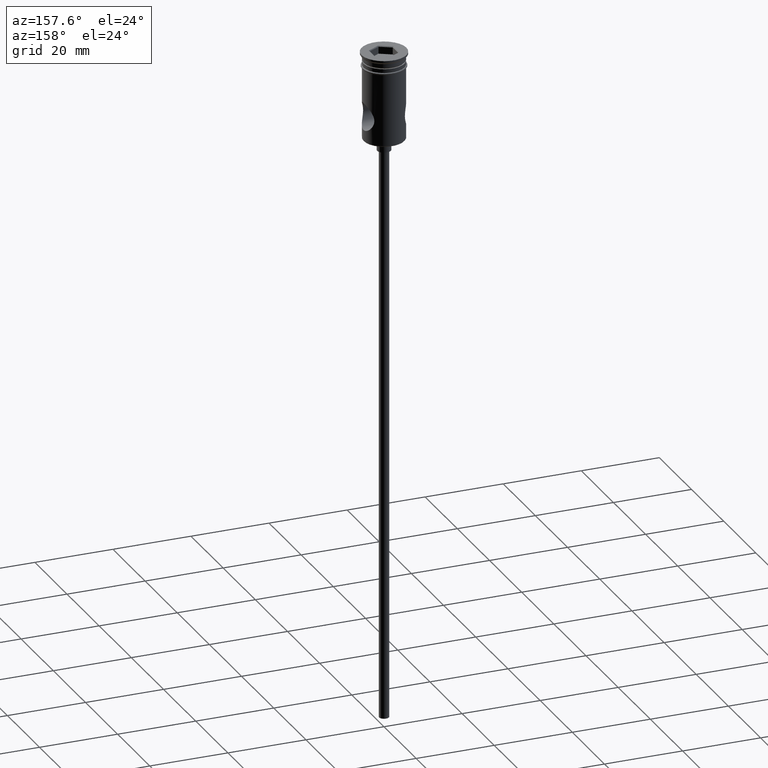
[diagram: clean part render]
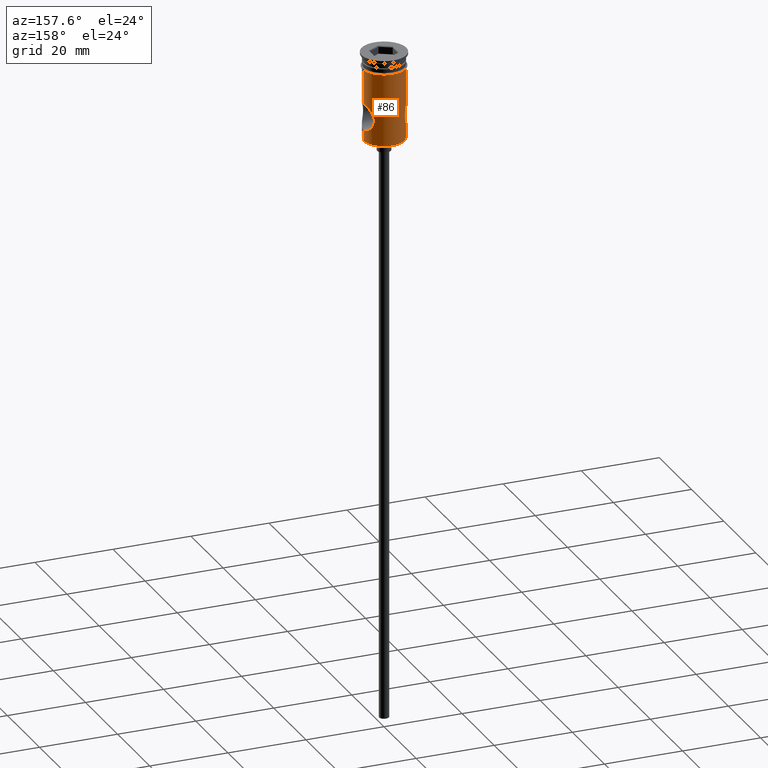
[diagram: same view with one face highlighted and labeled with its STEP entity id]
A machine part, auxiliary view. The second image highlights one B-rep face of the part: STEP entity #86.
In plain terms, the highlighted cylindrical surface (edge-blend (fillet) strip) has radius 5.25 mm, axis along (-0, -0, 1).
Its self-contained STEP definition (entity closure, byte-faithful):
#35 = EDGE_CURVE ( 'NONE', #130, #1314, #1269, .T. ) ;
#45 = CARTESIAN_POINT ( 'NONE',  ( 5.010722034647405287, 1.582225660229891417, -12.86955452061876493 ) ) ;
#49 = CARTESIAN_POINT ( 'NONE',  ( -4.791591092289863241, 2.154829214170284502, -13.23284061381127330 ) ) ;
#51 = EDGE_CURVE ( 'NONE', #888, #536, #269, .T. ) ;
#64 = ORIENTED_EDGE ( 'NONE', *, *, #35, .T. ) ;
#84 = CARTESIAN_POINT ( 'NONE',  ( -5.249999999999997335, 0.000000000000000000, -19.50000000000000000 ) ) ;
#86 = ADVANCED_FACE ( 'NONE', ( #385 ), #172, .T. ) ;
#92 = ORIENTED_EDGE ( 'NONE', *, *, #607, .F. ) ;
#93 = CARTESIAN_POINT ( 'NONE',  ( 4.941524827079387450, 1.784271681777895413, -12.98066119771261739 ) ) ;
#127 = CARTESIAN_POINT ( 'NONE',  ( -5.249999999999997335, 0.2356573567156205196, -12.49999999999999822 ) ) ;
#130 = VERTEX_POINT ( 'NONE', #505 ) ;
#134 = CARTESIAN_POINT ( 'NONE',  ( -5.249999999999998224, 6.429395695523602181E-16, -3.799999999999998934 ) ) ;
#135 = CARTESIAN_POINT ( 'NONE',  ( 5.249999999999997335, 0.2394817979535390218, -19.50000000000000355 ) ) ;
#151 = CARTESIAN_POINT ( 'NONE',  ( 5.249999999999997335, 0.000000000000000000, 0.000000000000000000 ) ) ;
#153 = CARTESIAN_POINT ( 'NONE',  ( 5.249999999999998224, 0.2359691128690733219, -12.50000000000000000 ) ) ;
#155 = VERTEX_POINT ( 'NONE', #1405 ) ;
#156 = CARTESIAN_POINT ( 'NONE',  ( 0.000000000000000000, 0.000000000000000000, -22.29999999999999716 ) ) ;
#162 = VERTEX_POINT ( 'NONE', #630 ) ;
#172 = CYLINDRICAL_SURFACE ( 'NONE', #1028, 5.249999999999997335 ) ;
#174 = CARTESIAN_POINT ( 'NONE',  ( -3.935709764125990606, 3.475135228226968298, -16.47752279465179726 ) ) ;
#183 = CARTESIAN_POINT ( 'NONE',  ( 5.249999999999997335, 9.037561610381727207E-20, -12.50000000000000000 ) ) ;
#198 = CARTESIAN_POINT ( 'NONE',  ( 5.171017401262783864, 0.9368000147816671896, -12.61943741575975864 ) ) ;
#213 = CARTESIAN_POINT ( 'NONE',  ( -5.249999999999997335, 0.000000000000000000, -19.50000000000000000 ) ) ;
#259 = VERTEX_POINT ( 'NONE', #1095 ) ;
#267 = CIRCLE ( 'NONE', #849, 5.249999999999999112 ) ;
#269 = LINE ( 'NONE', #1368, #982 ) ;
#273 = CARTESIAN_POINT ( 'NONE',  ( -4.941870577857391034, 1.783409467750111332, -12.98008101414071547 ) ) ;
#275 = CARTESIAN_POINT ( 'NONE',  ( 5.125401452483045794, 1.158029921580446375, -12.68909474010616023 ) ) ;
#280 = CARTESIAN_POINT ( 'NONE',  ( -4.541142868155102263, 2.640433033719366218, -13.69193262782664355 ) ) ;
#290 = CARTESIAN_POINT ( 'NONE',  ( -5.171446349193717928, 0.9340234967078269168, -19.38121539794984116 ) ) ;
#310 = CARTESIAN_POINT ( 'NONE',  ( 3.956270316689134425, 3.451288398606817687, -16.59344471299515433 ) ) ;
#354 = CARTESIAN_POINT ( 'NONE',  ( 5.125279937689080967, 1.158394803269064299, -19.31071042783137059 ) ) ;
#361 = LINE ( 'NONE', #367, #1320 ) ;
#367 = CARTESIAN_POINT ( 'NONE',  ( 5.249999999999997335, 0.000000000000000000, 0.000000000000000000 ) ) ;
#373 = CARTESIAN_POINT ( 'NONE',  ( -5.171157607198458628, 0.9357787620484806501, -12.61922458594744434 ) ) ;
#375 = CARTESIAN_POINT ( 'NONE',  ( 4.791879949463428545, 2.154107611278242462, -13.23235612182024212 ) ) ;
#385 = FACE_OUTER_BOUND ( 'NONE', #1163, .T. ) ;
#408 = EDGE_CURVE ( 'NONE', #259, #535, #820, .T. ) ;
#412 = CARTESIAN_POINT ( 'NONE',  ( -4.211358233975348142, 3.136775979440171724, -14.43100953861071289 ) ) ;
#418 = CARTESIAN_POINT ( 'NONE',  ( 4.291847880858497000, 3.027309060174748101, -17.77045454751424103 ) ) ;
#457 = B_SPLINE_CURVE_WITH_KNOTS ( 'NONE', 3,
 ( #932, #127, #1378, #373, #1048, #1277, #273, #49, #1408, #280, #515, #1190, #412, #1174, #1063, #1055, #531, #971, #174, #956, #1197, #1414, #1394, #623, #836, #721, #1283, #1165, #290, #524, #861, #84 ),
 .UNSPECIFIED., .F., .F.,
 ( 4, 2, 2, 2, 2, 2, 2, 2, 2, 2, 2, 2, 2, 2, 2, 4 ),
 ( 0.01131190453721613379, 0.01201796450896624492, 0.01272402448071635606, 0.01343008445246646719, 0.01413614442421657832, 0.01484220439596668772, 0.01554826436771679886, 0.01625432433946690999, 0.01696038431121701939, 0.01766644428296713226, 0.01837250425471724166, 0.01978462419821747087, 0.02049068416996758721, 0.02119674414171770355, 0.02190280411346781642, 0.02260886408521793275 ),
 .UNSPECIFIED. ) ;
#473 = VECTOR ( 'NONE', #821, 1000.000000000000000 ) ;
#491 = CARTESIAN_POINT ( 'NONE',  ( 0.000000000000000000, 0.000000000000000000, 0.000000000000000000 ) ) ;
#505 = CARTESIAN_POINT ( 'NONE',  ( -5.249999999999997335, 6.428491939192731130E-16, -12.50000000000000000 ) ) ;
#515 = CARTESIAN_POINT ( 'NONE',  ( -4.455882725706747038, 2.780268144892075632, -13.86229586798408597 ) ) ;
#524 = CARTESIAN_POINT ( 'NONE',  ( -5.233651169580556761, 0.4745025501927483402, -19.47560998813100497 ) ) ;
#525 = ORIENTED_EDGE ( 'NONE', *, *, #408, .F. ) ;
#526 = CARTESIAN_POINT ( 'NONE',  ( 4.076450620869312758, 3.310222646711700190, -17.15912893648900805 ) ) ;
#531 = CARTESIAN_POINT ( 'NONE',  ( -3.912973667625769814, 3.500162442579392241, -15.76330045747091546 ) ) ;
#535 = VERTEX_POINT ( 'NONE', #1129 ) ;
#536 = VERTEX_POINT ( 'NONE', #213 ) ;
#573 = ORIENTED_EDGE ( 'NONE', *, *, #51, .T. ) ;
#584 = CARTESIAN_POINT ( 'NONE',  ( 5.171738567981856605, 0.9322884155218371660, -19.38166086832590906 ) ) ;
#607 = EDGE_CURVE ( 'NONE', #155, #1314, #267, .T. ) ;
#610 = CARTESIAN_POINT ( 'NONE',  ( 4.015700048634967878, 3.382383198169304883, -15.06996144822462647 ) ) ;
#623 = CARTESIAN_POINT ( 'NONE',  ( -4.710874926819403896, 2.324119615847294540, -18.62629487387890137 ) ) ;
#630 = CARTESIAN_POINT ( 'NONE',  ( 5.249999999999997335, 0.000000000000000000, -22.29999999999999716 ) ) ;
#639 = DIRECTION ( 'NONE',  ( 1.000000000000000000, 0.000000000000000000, 0.000000000000000000 ) ) ;
#642 = ORIENTED_EDGE ( 'NONE', *, *, #1428, .F. ) ;
#645 = CARTESIAN_POINT ( 'NONE',  ( 5.233763254461210046, 0.4740647931550008298, -12.52421804113795645 ) ) ;
#649 = CARTESIAN_POINT ( 'NONE',  ( 3.934500147216331456, 3.476502778859750453, -15.53158113228982451 ) ) ;
#662 = CARTESIAN_POINT ( 'NONE',  ( 0.000000000000000000, 0.000000000000000000, -3.799999999999998934 ) ) ;
#692 = DIRECTION ( 'NONE',  ( -0.000000000000000000, -0.000000000000000000, 1.000000000000000000 ) ) ;
#702 = CARTESIAN_POINT ( 'NONE',  ( -5.249999999999997335, 6.429395695523601195E-16, -22.29999999999999716 ) ) ;
#717 = CARTESIAN_POINT ( 'NONE',  ( 4.017161582871402459, 3.380647649991993298, -16.93567858667559634 ) ) ;
#721 = CARTESIAN_POINT ( 'NONE',  ( -4.943496079229931617, 1.778885936374027477, -19.02256480771651326 ) ) ;
#748 = CARTESIAN_POINT ( 'NONE',  ( 4.542248346412462112, 2.638603940227051137, -13.68972905434603149 ) ) ;
#763 = CARTESIAN_POINT ( 'NONE',  ( 4.542868706571997706, 2.637461925376886285, -18.31144200051445736 ) ) ;
#770 = EDGE_CURVE ( 'NONE', #162, #888, #1078, .T. ) ;
#780 = AXIS2_PLACEMENT_3D ( 'NONE', #156, #1258, #1047 ) ;
#800 = DIRECTION ( 'NONE',  ( -0.000000000000000000, -0.000000000000000000, 1.000000000000000000 ) ) ;
#820 = B_SPLINE_CURVE_WITH_KNOTS ( 'NONE', 3,
 ( #1357, #135, #923, #584, #354, #1026, #1415, #1084, #1305, #763, #1207, #418, #1410, #526, #717, #310, #1379, #973, #934, #869, #649, #610, #1043, #830, #1092, #879, #748, #966, #375, #93, #45, #275, #198, #645, #153, #183 ),
 .UNSPECIFIED., .F., .F.,
 ( 4, 2, 2, 2, 2, 2, 2, 2, 2, 2, 2, 2, 2, 2, 2, 2, 2, 4 ),
 ( 0.000000000000000000, 0.0007069940335760138911, 0.001413988067152027782, 0.002120982100728041782, 0.002827976134304055564, 0.003534970167880069347, 0.004241964201456083564, 0.004948958235032096913, 0.005302455251820098817, 0.005655952268608101588, 0.006362946302184104529, 0.007069940335760109204, 0.007776934369336112145, 0.008483928402912116820, 0.009190922436488120628, 0.009897916470064124436, 0.01060491050364012824, 0.01131190453721613205 ),
 .UNSPECIFIED. ) ;
#821 = DIRECTION ( 'NONE',  ( -0.000000000000000000, -0.000000000000000000, 1.000000000000000000 ) ) ;
#830 = CARTESIAN_POINT ( 'NONE',  ( 4.211626988821404183, 3.136439829262892776, -14.43012365747861914 ) ) ;
#836 = CARTESIAN_POINT ( 'NONE',  ( -4.793649463825862433, 2.150235679629799446, -18.77070743917913731 ) ) ;
#839 = DIRECTION ( 'NONE',  ( -0.000000000000000000, -0.000000000000000000, 1.000000000000000000 ) ) ;
#849 = AXIS2_PLACEMENT_3D ( 'NONE', #662, #1107, #1119 ) ;
#861 = CARTESIAN_POINT ( 'NONE',  ( -5.249999999999997335, 0.2391654009334201192, -19.50000000000000355 ) ) ;
#866 = ORIENTED_EDGE ( 'NONE', *, *, #770, .T. ) ;
#869 = CARTESIAN_POINT ( 'NONE',  ( 3.912935558424084803, 3.500205050033672105, -15.76559328519909897 ) ) ;
#879 = CARTESIAN_POINT ( 'NONE',  ( 4.455965565348065205, 2.780112593366052653, -13.86216665491766165 ) ) ;
#888 = VERTEX_POINT ( 'NONE', #702 ) ;
#903 = CARTESIAN_POINT ( 'NONE',  ( -5.249999999999997335, 6.429395695523601195E-16, 0.000000000000000000 ) ) ;
#923 = CARTESIAN_POINT ( 'NONE',  ( 5.233705508463598832, 0.4736751586742009579, -19.47569040078916203 ) ) ;
#926 = DIRECTION ( 'NONE',  ( -0.000000000000000000, -0.000000000000000000, 1.000000000000000000 ) ) ;
#932 = CARTESIAN_POINT ( 'NONE',  ( -5.249999999999997335, 6.428491939192731130E-16, -12.50000000000000000 ) ) ;
#934 = CARTESIAN_POINT ( 'NONE',  ( 3.913212435243750065, 3.499895492128140884, -16.12176624835054284 ) ) ;
#956 = CARTESIAN_POINT ( 'NONE',  ( -4.017013811892041986, 3.380824786493573431, -16.93520940805085573 ) ) ;
#966 = CARTESIAN_POINT ( 'NONE',  ( 4.710700327440309643, 2.324554412983745877, -13.37397079666039978 ) ) ;
#971 = CARTESIAN_POINT ( 'NONE',  ( -3.913265713256698586, 3.499835925500728084, -16.24147938307706696 ) ) ;
#973 = CARTESIAN_POINT ( 'NONE',  ( 3.918847831090380929, 3.493622200933427457, -16.24210921229989424 ) ) ;
#977 = ORIENTED_EDGE ( 'NONE', *, *, #1060, .F. ) ;
#982 = VECTOR ( 'NONE', #800, 1000.000000000000000 ) ;
#1026 = CARTESIAN_POINT ( 'NONE',  ( 5.011119671772967799, 1.580839205956426463, -19.13107480940702132 ) ) ;
#1028 = AXIS2_PLACEMENT_3D ( 'NONE', #491, #839, #639 ) ;
#1043 = CARTESIAN_POINT ( 'NONE',  ( 4.073963173537556770, 3.313288510862781866, -14.84939764593511491 ) ) ;
#1047 = DIRECTION ( 'NONE',  ( -1.000000000000000000, 0.000000000000000000, 0.000000000000000000 ) ) ;
#1048 = CARTESIAN_POINT ( 'NONE',  ( -5.125624017123609377, 1.157272214673061184, -12.68874170657910128 ) ) ;
#1055 = CARTESIAN_POINT ( 'NONE',  ( -3.934854629125830172, 3.476098995561850202, -15.52910205287916767 ) ) ;
#1060 = EDGE_CURVE ( 'NONE', #162, #259, #361, .T. ) ;
#1063 = CARTESIAN_POINT ( 'NONE',  ( -4.015860184454199455, 3.382190437898870972, -15.06951789628486083 ) ) ;
#1078 = CIRCLE ( 'NONE', #780, 5.249999999999997335 ) ;
#1084 = CARTESIAN_POINT ( 'NONE',  ( 4.791726953342656081, 2.154678821938329047, -18.76742029390491950 ) ) ;
#1092 = CARTESIAN_POINT ( 'NONE',  ( 4.291292931424321999, 3.028111643923959484, -14.23084841941946799 ) ) ;
#1095 = CARTESIAN_POINT ( 'NONE',  ( 5.249999999999997335, 0.000000000000000000, -19.50000000000000000 ) ) ;
#1107 = DIRECTION ( 'NONE',  ( -0.000000000000000000, -0.000000000000000000, 1.000000000000000000 ) ) ;
#1119 = DIRECTION ( 'NONE',  ( 1.000000000000000000, 0.000000000000000000, 0.000000000000000000 ) ) ;
#1129 = CARTESIAN_POINT ( 'NONE',  ( 5.249999999999997335, 9.037561610381727207E-20, -12.50000000000000000 ) ) ;
#1163 = EDGE_LOOP ( 'NONE', ( #866, #573, #642, #64, #92, #1195, #525, #977 ) ) ;
#1165 = CARTESIAN_POINT ( 'NONE',  ( -5.124746031636079557, 1.160605218168686781, -19.30988035096184063 ) ) ;
#1174 = CARTESIAN_POINT ( 'NONE',  ( -4.074555398726829480, 3.312536795685572244, -14.84752675069979055 ) ) ;
#1190 = CARTESIAN_POINT ( 'NONE',  ( -4.290711569970873107, 3.028956263479465338, -14.23220649750372324 ) ) ;
#1195 = ORIENTED_EDGE ( 'NONE', *, *, #1417, .F. ) ;
#1197 = CARTESIAN_POINT ( 'NONE',  ( -4.076244073135415036, 3.310471843351305843, -17.15838242263341229 ) ) ;
#1207 = CARTESIAN_POINT ( 'NONE',  ( 4.456129832326547024, 2.779831882631588424, -18.13814034968121192 ) ) ;
#1226 = VECTOR ( 'NONE', #926, 1000.000000000000000 ) ;
#1244 = LINE ( 'NONE', #151, #1226 ) ;
#1258 = DIRECTION ( 'NONE',  ( -0.000000000000000000, -0.000000000000000000, 1.000000000000000000 ) ) ;
#1269 = LINE ( 'NONE', #903, #473 ) ;
#1277 = CARTESIAN_POINT ( 'NONE',  ( -5.010287030224573002, 1.583769054670561172, -12.87024185501964446 ) ) ;
#1283 = CARTESIAN_POINT ( 'NONE',  ( -5.010881149324091233, 1.581485525877044829, -19.13068937161849803 ) ) ;
#1305 = CARTESIAN_POINT ( 'NONE',  ( 4.710272676435011796, 2.325337138264823356, -18.62521936663612010 ) ) ;
#1314 = VERTEX_POINT ( 'NONE', #134 ) ;
#1320 = VECTOR ( 'NONE', #692, 1000.000000000000000 ) ;
#1357 = CARTESIAN_POINT ( 'NONE',  ( 5.249999999999997335, 0.000000000000000000, -19.50000000000000000 ) ) ;
#1368 = CARTESIAN_POINT ( 'NONE',  ( -5.249999999999997335, 6.429395695523601195E-16, 0.000000000000000000 ) ) ;
#1378 = CARTESIAN_POINT ( 'NONE',  ( -5.233633430427243383, 0.4750094798020746967, -12.52441511600401824 ) ) ;
#1379 = CARTESIAN_POINT ( 'NONE',  ( 3.940413688538167758, 3.469280093805877652, -16.47760714426992834 ) ) ;
#1394 = CARTESIAN_POINT ( 'NONE',  ( -4.459834455484653404, 2.792467526987479687, -18.15591097312377400 ) ) ;
#1405 = CARTESIAN_POINT ( 'NONE',  ( 5.249999999999999112, 0.000000000000000000, -3.799999999999998934 ) ) ;
#1408 = CARTESIAN_POINT ( 'NONE',  ( -4.708760133973806994, 2.328399268865065874, -13.37747860927764521 ) ) ;
#1410 = CARTESIAN_POINT ( 'NONE',  ( 4.213805231981512023, 3.133507475994600444, -17.57552681985903220 ) ) ;
#1414 = CARTESIAN_POINT ( 'NONE',  ( -4.282019573606240748, 3.045778496349780706, -17.78256220141813060 ) ) ;
#1415 = CARTESIAN_POINT ( 'NONE',  ( 4.943096194098154150, 1.780193258326856265, -19.02194769508573202 ) ) ;
#1417 = EDGE_CURVE ( 'NONE', #535, #155, #1244, .T. ) ;
#1428 = EDGE_CURVE ( 'NONE', #130, #536, #457, .T. ) ;